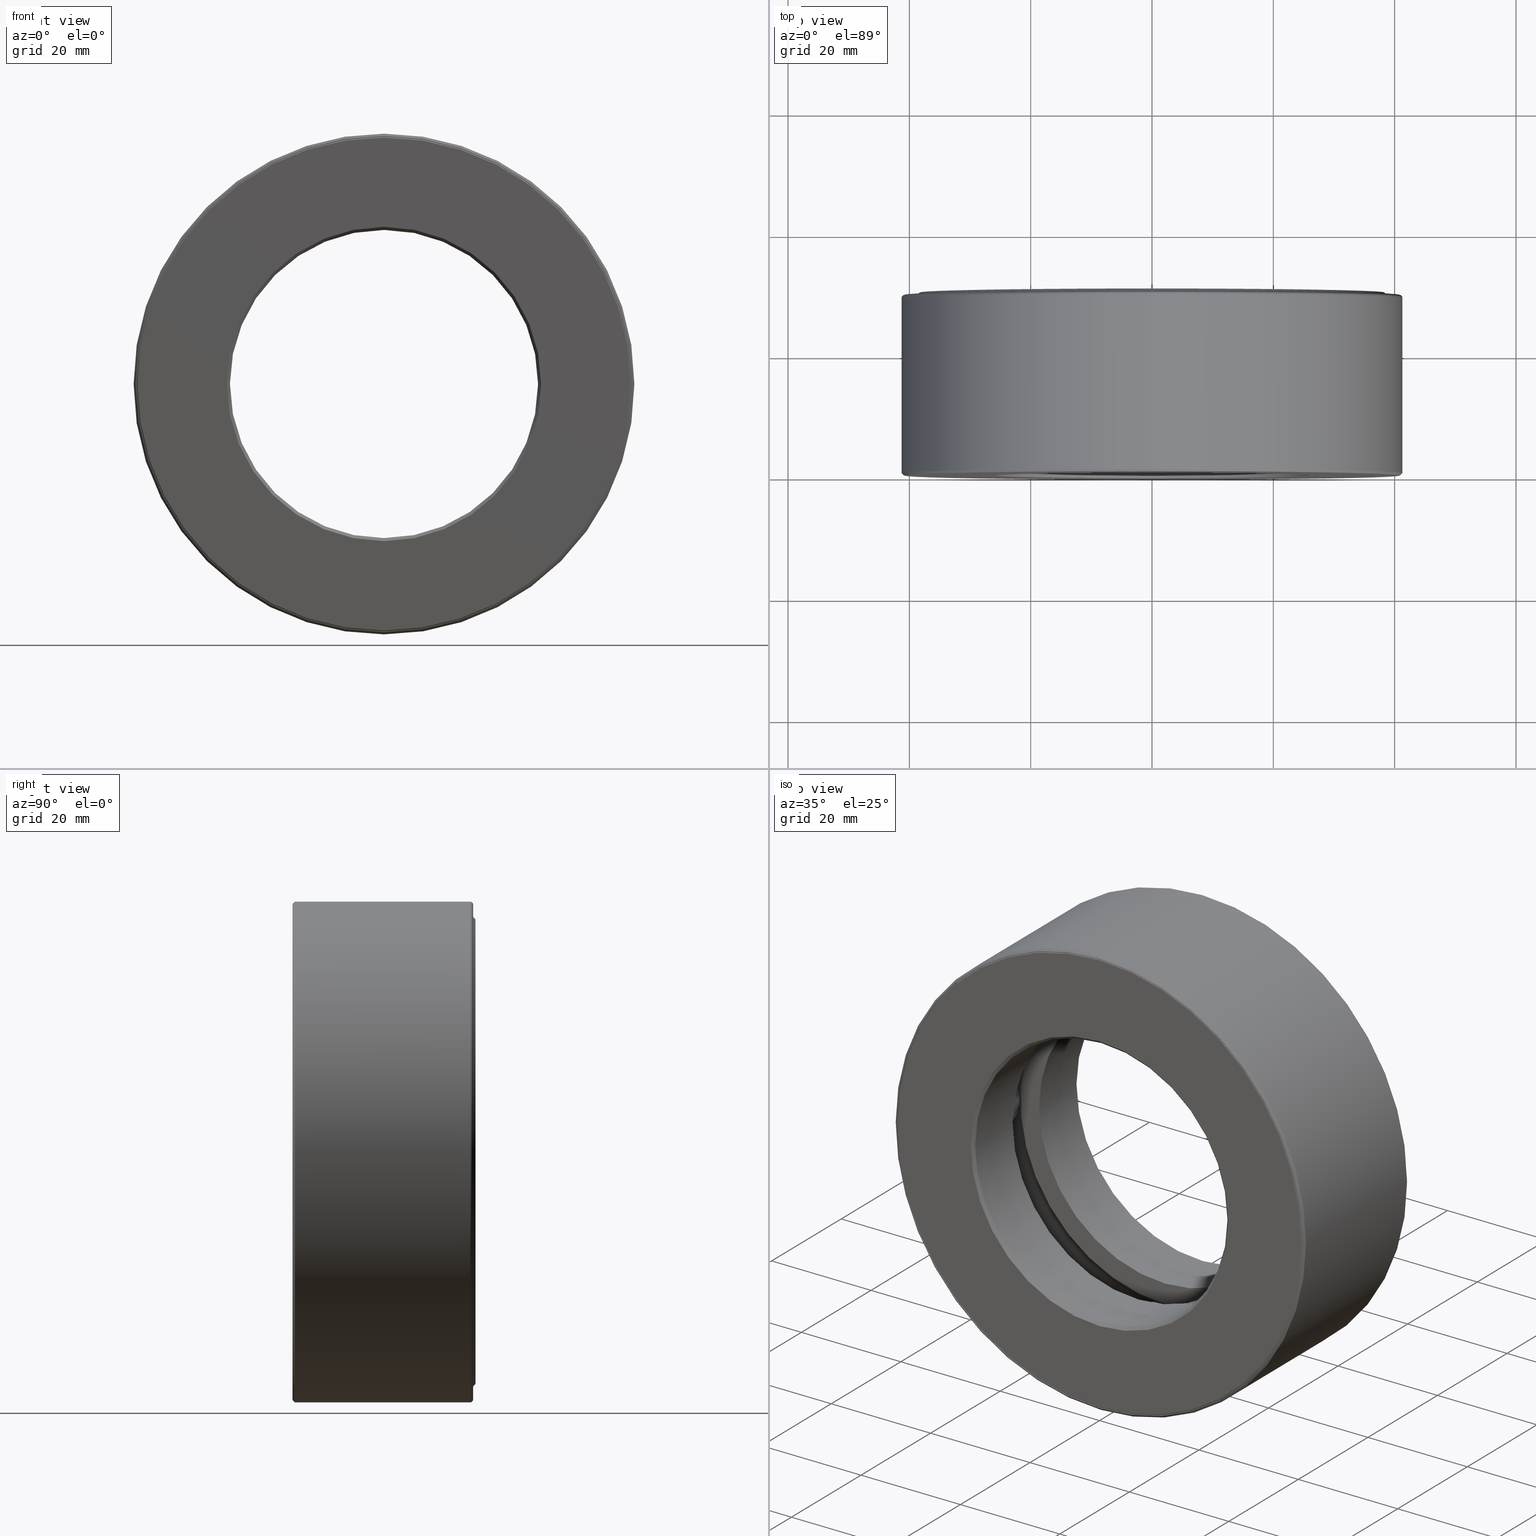
[diagram: canonical four-view strip — front | top / right | iso, engineering-drawing reading convention]
A machine part, canonical four-view strip (front | top / right | iso — engineering-drawing reading convention). The complete STEP part file that produces these views, byte-faithful:
ISO-10303-21;
HEADER;
FILE_DESCRIPTION (( 'STEP AP203' ),
    '1' );
FILE_NAME ('T-100-38.step',
    '2016-06-29T18:27:34',
    ( '' ),
    ( '' ),
    'SwSTEP 2.0',
    'SolidWorks 2016',
    '' );
FILE_SCHEMA (( 'CONFIG_CONTROL_DESIGN' ));
ENDSEC;

DATA;
#1 = CC_DESIGN_PERSON_AND_ORGANIZATION_ASSIGNMENT ( #105, #408, ( #541 ) ) ;
#2 = EDGE_LOOP ( 'NONE', ( #442 ) ) ;
#3 = AXIS2_PLACEMENT_3D ( 'NONE', #433, #383, #388 ) ;
#4 = PLANE ( 'NONE',  #193 ) ;
#5 = AXIS2_PLACEMENT_3D ( 'NONE', #344, #73, #529 ) ;
#6 = VERTEX_POINT ( 'NONE', #419 ) ;
#7 = EDGE_LOOP ( 'NONE', ( #156 ) ) ;
#8 = EDGE_CURVE ( 'NONE', #190, #190, #568, .T. ) ;
#9 = ORIENTED_EDGE ( 'NONE', *, *, #503, .F. ) ;
#10 = CARTESIAN_POINT ( 'NONE',  ( 0.0000000000000000000, 0.4437499999999997600, 0.0000000000000000000 ) ) ;
#11 = ADVANCED_FACE ( 'NONE', ( #262, #205 ), #411, .F. ) ;
#12 = DIRECTION ( 'NONE',  ( 0.0000000000000000000, 0.0000000000000000000, 1.000000000000000000 ) ) ;
#13 = DIRECTION ( 'NONE',  ( 0.0000000000000000000, -0.0000000000000000000, -1.000000000000000000 ) ) ;
#14 = EDGE_LOOP ( 'NONE', ( #555 ) ) ;
#15 = ADVANCED_FACE ( 'NONE', ( #525, #188 ), #4, .T. ) ;
#16 = CARTESIAN_POINT ( 'NONE',  ( 0.0000000000000000000, -8.694983911032602800E-017, 0.0000000000000000000 ) ) ;
#17 = DIRECTION ( 'NONE',  ( 0.0000000000000000000, -1.000000000000000000, 0.0000000000000000000 ) ) ;
#18 = CALENDAR_DATE ( 2016, 29, 6 ) ;
#19 = DIRECTION ( 'NONE',  ( 0.0000000000000000000, 0.0000000000000000000, 1.000000000000000000 ) ) ;
#20 = ORIENTED_EDGE ( 'NONE', *, *, #377, .F. ) ;
#21 = DIRECTION ( 'NONE',  ( -0.0000000000000000000, 1.000000000000000000, -0.0000000000000000000 ) ) ;
#22 = ORIENTED_EDGE ( 'NONE', *, *, #503, .T. ) ;
#23 = SECURITY_CLASSIFICATION ( '', '', #560 ) ;
#24 = DIRECTION ( 'NONE',  ( 0.0000000000000000000, 0.0000000000000000000, 1.000000000000000000 ) ) ;
#25 = LOCAL_TIME ( 14, 27, 34.00000000000000000, #351 ) ;
#26 = EDGE_CURVE ( 'NONE', #502, #502, #427, .T. ) ;
#27 = ORIENTED_EDGE ( 'NONE', *, *, #88, .F. ) ;
#28 = FACE_OUTER_BOUND ( 'NONE', #402, .T. ) ;
#29 = CARTESIAN_POINT ( 'NONE',  ( 0.0000000000000000000, 0.0000000000000000000, 0.0000000000000000000 ) ) ;
#30 = CC_DESIGN_SECURITY_CLASSIFICATION ( #23, ( #541 ) ) ;
#31 = CARTESIAN_POINT ( 'NONE',  ( 0.0000000000000000000, 1.167499999999999500, 0.0000000000000000000 ) ) ;
#32 = VERTEX_POINT ( 'NONE', #490 ) ;
#33 =( NAMED_UNIT ( * ) PLANE_ANGLE_UNIT ( ) SI_UNIT ( $, .RADIAN. ) );
#34 = EDGE_LOOP ( 'NONE', ( #27 ) ) ;
#35 = PERSON_AND_ORGANIZATION_ROLE ( 'creator' ) ;
#36 = ORIENTED_EDGE ( 'NONE', *, *, #547, .F. ) ;
#37 = AXIS2_PLACEMENT_3D ( 'NONE', #10, #324, #369 ) ;
#38 = CARTESIAN_POINT ( 'NONE',  ( 0.0000000000000000000, 1.172499999999999900, 1.545000000000000200 ) ) ;
#39 = APPLICATION_CONTEXT ( 'configuration controlled 3d designs of mechanical parts and assemblies' ) ;
#40 = VERTEX_POINT ( 'NONE', #599 ) ;
#41 = CONICAL_SURFACE ( 'NONE', #162, 1.509999999999999800, 0.7853981633974490600 ) ;
#42 = APPROVAL_STATUS ( 'not_yet_approved' ) ;
#43 = DATE_AND_TIME ( #270, #25 ) ;
#44 = VERTEX_POINT ( 'NONE', #544 ) ;
#45 = CARTESIAN_POINT ( 'NONE',  ( 1.391652017320402500E-015, 0.7437499999999999100, 0.0000000000000000000 ) ) ;
#46 = EDGE_LOOP ( 'NONE', ( #374 ) ) ;
#47 = CYLINDRICAL_SURFACE ( 'NONE', #559, 1.000000000000000000 ) ;
#48 = ADVANCED_BREP_SHAPE_REPRESENTATION ( 'T-100-38', ( #520, #428, #137, #455, #154, #473, #189 ), #219 ) ;
#49 = FACE_OUTER_BOUND ( 'NONE', #274, .T. ) ;
#50 = CIRCLE ( 'NONE', #58, 1.598000000000000100 ) ;
#51 = CIRCLE ( 'NONE', #450, 1.020000000000000200 ) ;
#52 = DIRECTION ( 'NONE',  ( -0.0000000000000000000, 1.000000000000000000, 0.0000000000000000000 ) ) ;
#53 = VERTEX_POINT ( 'NONE', #152 ) ;
#54 = PLANE ( 'NONE',  #231 ) ;
#55 = ORIENTED_EDGE ( 'NONE', *, *, #510, .F. ) ;
#56 = CARTESIAN_POINT ( 'NONE',  ( -1.409860164624857200E-014, 0.5937500000000000000, -1.346000000000000100 ) ) ;
#57 = CC_DESIGN_DATE_AND_TIME_ASSIGNMENT ( #215, #182, ( #23 ) ) ;
#58 = AXIS2_PLACEMENT_3D ( 'NONE', #583, #21, #157 ) ;
#59 = DIRECTION ( 'NONE',  ( -0.0000000000000000000, 1.000000000000000000, -0.0000000000000000000 ) ) ;
#60 = ADVANCED_FACE ( 'NONE', ( ), #550, .T. ) ;
#61 = CARTESIAN_POINT ( 'NONE',  ( 0.0000000000000000000, 0.7437499999999998000, 0.0000000000000000000 ) ) ;
#62 = EDGE_LOOP ( 'NONE', ( #108 ) ) ;
#63 = FACE_OUTER_BOUND ( 'NONE', #2, .T. ) ;
#64 = EDGE_LOOP ( 'NONE', ( #364 ) ) ;
#65 = DIRECTION ( 'NONE',  ( -0.0000000000000000000, 1.000000000000000000, 0.0000000000000000000 ) ) ;
#66 = CARTESIAN_POINT ( 'NONE',  ( 0.0000000000000000000, 0.0000000000000000000, 0.0000000000000000000 ) ) ;
#67 = CARTESIAN_POINT ( 'NONE',  ( 0.0000000000000000000, 0.7437500000000001300, 0.0000000000000000000 ) ) ;
#68 = DIRECTION ( 'NONE',  ( 0.0000000000000000000, -0.0000000000000000000, -1.000000000000000000 ) ) ;
#69 = AXIS2_PLACEMENT_3D ( 'NONE', #98, #192, #185 ) ;
#70 = DIRECTION ( 'NONE',  ( 0.0000000000000000000, -1.000000000000000000, 0.0000000000000000000 ) ) ;
#71 = DIRECTION ( 'NONE',  ( 0.0000000000000000000, 0.0000000000000000000, 1.000000000000000000 ) ) ;
#72 = FACE_OUTER_BOUND ( 'NONE', #327, .T. ) ;
#73 = DIRECTION ( 'NONE',  ( -0.0000000000000000000, 1.000000000000000000, -0.0000000000000000000 ) ) ;
#74 = DIRECTION ( 'NONE',  ( -0.0000000000000000000, 1.000000000000000000, -0.0000000000000000000 ) ) ;
#75 = ORIENTED_EDGE ( 'NONE', *, *, #476, .T. ) ;
#76 = CYLINDRICAL_SURFACE ( 'NONE', #3, 1.545000000000000200 ) ;
#77 = EDGE_LOOP ( 'NONE', ( #577 ) ) ;
#78 = DIRECTION ( 'NONE',  ( 0.0000000000000000000, 0.0000000000000000000, 1.000000000000000000 ) ) ;
#79 = CARTESIAN_POINT ( 'NONE',  ( 0.0000000000000000000, 0.0000000000000000000, 0.0000000000000000000 ) ) ;
#80 = AXIS2_PLACEMENT_3D ( 'NONE', #527, #59, #338 ) ;
#81 = VERTEX_POINT ( 'NONE', #399 ) ;
#82 = CIRCLE ( 'NONE', #161, 1.605000000000000000 ) ;
#83 = CARTESIAN_POINT ( 'NONE',  ( 0.0000000000000000000, 2.048885995248197400E-016, 1.020000000000000200 ) ) ;
#84 = EDGE_LOOP ( 'NONE', ( #169 ) ) ;
#85 = CARTESIAN_POINT ( 'NONE',  ( 0.0000000000000000000, 1.152499999999999900, 1.605000000000000000 ) ) ;
#86 = EDGE_LOOP ( 'NONE', ( #295 ) ) ;
#87 = AXIS2_PLACEMENT_3D ( 'NONE', #254, #167, #346 ) ;
#88 = EDGE_CURVE ( 'NONE', #6, #6, #141, .T. ) ;
#89 = FACE_OUTER_BOUND ( 'NONE', #515, .T. ) ;
#90 = PERSON_AND_ORGANIZATION ( #585, #168 ) ;
#91 = CC_DESIGN_PERSON_AND_ORGANIZATION_ASSIGNMENT ( #129, #35, ( #354 ) ) ;
#92 = APPROVAL_ROLE ( '' ) ;
#93 = AXIS2_PLACEMENT_3D ( 'NONE', #61, #380, #298 ) ;
#94 = ORIENTED_EDGE ( 'NONE', *, *, #462, .T. ) ;
#95 = DIRECTION ( 'NONE',  ( 0.0000000000000000000, -0.0000000000000000000, -1.000000000000000000 ) ) ;
#96 = ADVANCED_FACE ( 'NONE', ( #49, #247 ), #155, .T. ) ;
#97 = VERTEX_POINT ( 'NONE', #173 ) ;
#98 = CARTESIAN_POINT ( 'NONE',  ( 0.0000000000000000000, 0.02000000000000046900, 0.0000000000000000000 ) ) ;
#99 = EDGE_CURVE ( 'NONE', #360, #360, #310, .T. ) ;
#100 = ORIENTED_EDGE ( 'NONE', *, *, #304, .F. ) ;
#101 = ORIENTED_EDGE ( 'NONE', *, *, #413, .T. ) ;
#102 = ADVANCED_FACE ( 'NONE', ( #226, #320 ), #41, .T. ) ;
#103 = CC_DESIGN_PERSON_AND_ORGANIZATION_ASSIGNMENT ( #533, #551, ( #471 ) ) ;
#104 = DIRECTION ( 'NONE',  ( 0.0000000000000000000, 0.0000000000000000000, 1.000000000000000000 ) ) ;
#105 = PERSON_AND_ORGANIZATION ( #585, #168 ) ;
#106 = ADVANCED_FACE ( 'NONE', ( #358, #238 ), #76, .F. ) ;
#107 = DIRECTION ( 'NONE',  ( 1.000000000000000000, 0.0000000000000000000, 0.0000000000000000000 ) ) ;
#108 = ORIENTED_EDGE ( 'NONE', *, *, #581, .F. ) ;
#109 = ADVANCED_FACE ( 'NONE', ( #125, #187 ), #348, .F. ) ;
#110 = FACE_OUTER_BOUND ( 'NONE', #311, .T. ) ;
#111 = DIRECTION ( 'NONE',  ( -0.0000000000000000000, 1.000000000000000000, -0.0000000000000000000 ) ) ;
#112 = DIRECTION ( 'NONE',  ( -0.0000000000000000000, 1.000000000000000000, -0.0000000000000000000 ) ) ;
#113 = AXIS2_PLACEMENT_3D ( 'NONE', #66, #432, #523 ) ;
#114 = VERTEX_POINT ( 'NONE', #404 ) ;
#115 = DIRECTION ( 'NONE',  ( 0.0000000000000000000, 0.0000000000000000000, 1.000000000000000000 ) ) ;
#116 = DIRECTION ( 'NONE',  ( -0.0000000000000000000, 1.000000000000000000, -0.0000000000000000000 ) ) ;
#117 = EDGE_LOOP ( 'NONE', ( #55 ) ) ;
#118 = EDGE_LOOP ( 'NONE', ( #597 ) ) ;
#119 = FACE_OUTER_BOUND ( 'NONE', #567, .T. ) ;
#120 = AXIS2_PLACEMENT_3D ( 'NONE', #365, #326, #24 ) ;
#121 = DIRECTION ( 'NONE',  ( 0.0000000000000000000, 0.0000000000000000000, 1.000000000000000000 ) ) ;
#122 = DIRECTION ( 'NONE',  ( -0.0000000000000000000, 1.000000000000000000, 0.0000000000000000000 ) ) ;
#123 = DIRECTION ( 'NONE',  ( -0.0000000000000000000, 1.000000000000000000, -0.0000000000000000000 ) ) ;
#124 = DIRECTION ( 'NONE',  ( -0.0000000000000000000, 1.000000000000000000, -0.0000000000000000000 ) ) ;
#125 = FACE_OUTER_BOUND ( 'NONE', #209, .T. ) ;
#126 = CC_DESIGN_DATE_AND_TIME_ASSIGNMENT ( #43, #403, ( #354 ) ) ;
#127 = AXIS2_PLACEMENT_3D ( 'NONE', #590, #211, #425 ) ;
#128 = DIRECTION ( 'NONE',  ( -0.0000000000000000000, 1.000000000000000000, -0.0000000000000000000 ) ) ;
#129 = PERSON_AND_ORGANIZATION ( #585, #168 ) ;
#130 = AXIS2_PLACEMENT_3D ( 'NONE', #534, #251, #291 ) ;
#131 = ORIENTED_EDGE ( 'NONE', *, *, #410, .F. ) ;
#132 = CLOSED_SHELL ( 'NONE', ( #575, #422, #15, #201, #322, #96, #102, #147 ) ) ;
#133 = FACE_OUTER_BOUND ( 'NONE', #77, .T. ) ;
#134 = CARTESIAN_POINT ( 'NONE',  ( 0.0000000000000000000, -8.694983911032602800E-017, 1.605000000000000000 ) ) ;
#135 = CARTESIAN_POINT ( 'NONE',  ( 0.0000000000000000000, 0.7437500000000001300, 1.598000000000000100 ) ) ;
#136 = CIRCLE ( 'NONE', #253, 1.598000000000000100 ) ;
#137 = MANIFOLD_SOLID_BREP ( 'Revolve3', #480 ) ;
#138 = LOCAL_TIME ( 14, 27, 34.00000000000000000, #592 ) ;
#139 = LOCAL_TIME ( 14, 27, 34.00000000000000000, #260 ) ;
#140 = AXIS2_PLACEMENT_3D ( 'NONE', #458, #511, #470 ) ;
#141 = CIRCLE ( 'NONE', #181, 1.625000000000000000 ) ;
#142 = CIRCLE ( 'NONE', #373, 1.605000000000000000 ) ;
#143 = CARTESIAN_POINT ( 'NONE',  ( 0.0000000000000000000, 0.4437500000000001400, 0.0000000000000000000 ) ) ;
#144 = ORIENTED_EDGE ( 'NONE', *, *, #8, .F. ) ;
#145 = FACE_OUTER_BOUND ( 'NONE', #456, .T. ) ;
#146 = DIRECTION ( 'NONE',  ( 1.047444401652940000E-014, 0.0000000000000000000, 1.000000000000000000 ) ) ;
#147 = ADVANCED_FACE ( 'NONE', ( #110, #63 ), #516, .T. ) ;
#148 = PRODUCT_RELATED_PRODUCT_CATEGORY ( 'detail', '', ( #471 ) ) ;
#149 = CARTESIAN_POINT ( 'NONE',  ( 0.0000000000000000000, 0.4437499999999997600, 1.605000000000000000 ) ) ;
#150 = DIRECTION ( 'NONE',  ( 0.0000000000000000000, -1.000000000000000000, 0.0000000000000000000 ) ) ;
#151 = CIRCLE ( 'NONE', #174, 1.605000000000000000 ) ;
#152 = CARTESIAN_POINT ( 'NONE',  ( 0.0000000000000000000, 1.187500000000000000, 1.020000000000000200 ) ) ;
#153 = AXIS2_PLACEMENT_3D ( 'NONE', #342, #389, #121 ) ;
#154 = MANIFOLD_SOLID_BREP ( 'BALLS[2]', #292 ) ;
#155 = PLANE ( 'NONE',  #494 ) ;
#156 = ORIENTED_EDGE ( 'NONE', *, *, #213, .T. ) ;
#157 = DIRECTION ( 'NONE',  ( 0.0000000000000000000, 0.0000000000000000000, 1.000000000000000000 ) ) ;
#158 = EDGE_LOOP ( 'NONE', ( #309 ) ) ;
#159 = DIRECTION ( 'NONE',  ( 0.0000000000000000000, 0.0000000000000000000, 1.000000000000000000 ) ) ;
#160 = VERTEX_POINT ( 'NONE', #314 ) ;
#161 = AXIS2_PLACEMENT_3D ( 'NONE', #421, #512, #104 ) ;
#162 = AXIS2_PLACEMENT_3D ( 'NONE', #526, #70, #335 ) ;
#163 = DIRECTION ( 'NONE',  ( 0.0000000000000000000, 0.0000000000000000000, 1.000000000000000000 ) ) ;
#164 = FACE_OUTER_BOUND ( 'NONE', #210, .T. ) ;
#165 = DIRECTION ( 'NONE',  ( 0.0000000000000000000, 0.0000000000000000000, 1.000000000000000000 ) ) ;
#166 = FACE_BOUND ( 'NONE', #186, .T. ) ;
#167 = DIRECTION ( 'NONE',  ( 0.0000000000000000000, -1.000000000000000000, 0.0000000000000000000 ) ) ;
#168 = ORGANIZATION ( 'UNSPECIFIED', 'UNSPECIFIED', '' ) ;
#169 = ORIENTED_EDGE ( 'NONE', *, *, #547, .T. ) ;
#170 = CIRCLE ( 'NONE', #275, 1.000000000000000200 ) ;
#171 = CARTESIAN_POINT ( 'NONE',  ( 0.0000000000000000000, 0.4437499999999998700, 1.146000000000000400 ) ) ;
#172 = EDGE_LOOP ( 'NONE', ( #222 ) ) ;
#173 = CARTESIAN_POINT ( 'NONE',  ( 0.0000000000000000000, 1.152499999999999900, 1.545000000000000200 ) ) ;
#174 = AXIS2_PLACEMENT_3D ( 'NONE', #16, #290, #565 ) ;
#175 = DIRECTION ( 'NONE',  ( 1.000000000000000000, 0.0000000000000000000, 0.0000000000000000000 ) ) ;
#176 = VERTEX_POINT ( 'NONE', #135 ) ;
#177 = APPLICATION_PROTOCOL_DEFINITION ( 'international standard', 'config_control_design', 1994, #39 ) ;
#178 = EDGE_LOOP ( 'NONE', ( #75 ) ) ;
#179 = FACE_OUTER_BOUND ( 'NONE', #117, .T. ) ;
#180 = FACE_BOUND ( 'NONE', #524, .T. ) ;
#181 = AXIS2_PLACEMENT_3D ( 'NONE', #477, #112, #159 ) ;
#182 = DATE_TIME_ROLE ( 'classification_date' ) ;
#183 = FACE_OUTER_BOUND ( 'NONE', #7, .T. ) ;
#184 = APPROVAL_STATUS ( 'not_yet_approved' ) ;
#185 = DIRECTION ( 'NONE',  ( 0.0000000000000000000, 0.0000000000000000000, -1.000000000000000000 ) ) ;
#186 = EDGE_LOOP ( 'NONE', ( #9 ) ) ;
#187 = FACE_OUTER_BOUND ( 'NONE', #491, .T. ) ;
#188 = FACE_OUTER_BOUND ( 'NONE', #248, .T. ) ;
#189 = AXIS2_PLACEMENT_3D ( 'NONE', #79, #451, #175 ) ;
#190 = VERTEX_POINT ( 'NONE', #149 ) ;
#191 = VERTEX_POINT ( 'NONE', #606 ) ;
#192 = DIRECTION ( 'NONE',  ( 0.0000000000000000000, -1.000000000000000000, 0.0000000000000000000 ) ) ;
#193 = AXIS2_PLACEMENT_3D ( 'NONE', #45, #359, #95 ) ;
#194 = ADVANCED_FACE ( 'NONE', ( ), #363, .T. ) ;
#195 = ORIENTED_EDGE ( 'NONE', *, *, #235, .F. ) ;
#196 = FACE_BOUND ( 'NONE', #118, .T. ) ;
#197 = CC_DESIGN_PERSON_AND_ORGANIZATION_ASSIGNMENT ( #90, #454, ( #23 ) ) ;
#198 = AXIS2_PLACEMENT_3D ( 'NONE', #531, #587, #300 ) ;
#199 = DIRECTION ( 'NONE',  ( 0.0000000000000000000, 0.0000000000000000000, 1.000000000000000000 ) ) ;
#200 = CALENDAR_DATE ( 2016, 29, 6 ) ;
#201 = ADVANCED_FACE ( 'NONE', ( #204, #145 ), #268, .F. ) ;
#202 = CARTESIAN_POINT ( 'NONE',  ( 0.0000000000000000000, 0.005000000000000418200, 0.0000000000000000000 ) ) ;
#203 = ADVANCED_FACE ( 'NONE', ( #598, #28 ), #47, .F. ) ;
#204 = FACE_OUTER_BOUND ( 'NONE', #14, .T. ) ;
#205 = FACE_BOUND ( 'NONE', #484, .T. ) ;
#206 = DIRECTION ( 'NONE',  ( -0.0000000000000000000, 1.000000000000000000, -0.0000000000000000000 ) ) ;
#207 = CIRCLE ( 'NONE', #317, 1.610000000000000100 ) ;
#208 = DIRECTION ( 'NONE',  ( 0.0000000000000000000, 0.0000000000000000000, 1.000000000000000000 ) ) ;
#209 = EDGE_LOOP ( 'NONE', ( #319 ) ) ;
#210 = EDGE_LOOP ( 'NONE', ( #449 ) ) ;
#211 = DIRECTION ( 'NONE',  ( -1.000000000000000000, 0.0000000000000000000, 3.491481338843134500E-015 ) ) ;
#212 = CARTESIAN_POINT ( 'NONE',  ( 0.0000000000000000000, 2.048885995248197400E-016, 0.0000000000000000000 ) ) ;
#213 = EDGE_CURVE ( 'NONE', #53, #53, #406, .T. ) ;
#214 = DIRECTION ( 'NONE',  ( 0.0000000000000000000, 0.0000000000000000000, 1.000000000000000000 ) ) ;
#215 = DATE_AND_TIME ( #257, #397 ) ;
#216 = ORIENTED_EDGE ( 'NONE', *, *, #26, .T. ) ;
#217 = AXIS2_PLACEMENT_3D ( 'NONE', #340, #150, #68 ) ;
#218 = DIRECTION ( 'NONE',  ( 0.0000000000000000000, 0.0000000000000000000, 1.000000000000000000 ) ) ;
#219 =( GEOMETRIC_REPRESENTATION_CONTEXT ( 3 ) GLOBAL_UNCERTAINTY_ASSIGNED_CONTEXT ( ( #285 ) ) GLOBAL_UNIT_ASSIGNED_CONTEXT ( ( #259, #33, #495 ) ) REPRESENTATION_CONTEXT ( 'NONE', 'WORKASPACE' ) );
#220 = APPLICATION_PROTOCOL_DEFINITION ( 'international standard', 'config_control_design', 1994, #487 ) ;
#221 = VERTEX_POINT ( 'NONE', #83 ) ;
#222 = ORIENTED_EDGE ( 'NONE', *, *, #570, .T. ) ;
#223 = ORIENTED_EDGE ( 'NONE', *, *, #99, .F. ) ;
#224 = CIRCLE ( 'NONE', #398, 1.545000000000000200 ) ;
#225 = ORIENTED_EDGE ( 'NONE', *, *, #496, .T. ) ;
#226 = FACE_OUTER_BOUND ( 'NONE', #178, .T. ) ;
#227 = APPROVAL_DATE_TIME ( #409, #386 ) ;
#228 = VERTEX_POINT ( 'NONE', #265 ) ;
#229 = CLOSED_SHELL ( 'NONE', ( #109, #278, #272, #289, #106, #469, #371, #424, #239, #367, #504, #332, #282, #11, #203, #465 ) ) ;
#230 = EDGE_LOOP ( 'NONE', ( #144 ) ) ;
#231 = AXIS2_PLACEMENT_3D ( 'NONE', #331, #17, #13 ) ;
#232 = CARTESIAN_POINT ( 'NONE',  ( 0.0000000000000000000, -8.643737792453333200E-017, 1.599999999999999600 ) ) ;
#233 = FACE_OUTER_BOUND ( 'NONE', #603, .T. ) ;
#234 = DIRECTION ( 'NONE',  ( 1.000000000000000000, 0.0000000000000000000, -1.047444401652940000E-014 ) ) ;
#235 = EDGE_CURVE ( 'NONE', #297, #297, #170, .T. ) ;
#236 = DIRECTION ( 'NONE',  ( -0.0000000000000000000, 1.000000000000000000, -0.0000000000000000000 ) ) ;
#237 = ORIENTED_EDGE ( 'NONE', *, *, #213, .F. ) ;
#238 = FACE_OUTER_BOUND ( 'NONE', #267, .T. ) ;
#239 = ADVANCED_FACE ( 'NONE', ( #549, #293 ), #316, .T. ) ;
#240 = PLANE ( 'NONE',  #217 ) ;
#241 = CALENDAR_DATE ( 2016, 29, 6 ) ;
#242 = APPROVAL_DATE_TIME ( #489, #244 ) ;
#243 = DIRECTION ( 'NONE',  ( -0.0000000000000000000, 1.000000000000000000, -0.0000000000000000000 ) ) ;
#244 = APPROVAL ( #602, 'UNSPECIFIED' ) ;
#245 = CARTESIAN_POINT ( 'NONE',  ( 0.0000000000000000000, 0.5937500000000000000, 0.0000000000000000000 ) ) ;
#246 = CARTESIAN_POINT ( 'NONE',  ( 0.0000000000000000000, 0.7437500000000001300, 0.0000000000000000000 ) ) ;
#247 = FACE_BOUND ( 'NONE', #562, .T. ) ;
#248 = EDGE_LOOP ( 'NONE', ( #589 ) ) ;
#249 = DIRECTION ( 'NONE',  ( -1.000000000000000000, 0.0000000000000000000, 6.982962677686269100E-015 ) ) ;
#250 = FACE_BOUND ( 'NONE', #86, .T. ) ;
#251 = DIRECTION ( 'NONE',  ( -0.0000000000000000000, 1.000000000000000000, -0.0000000000000000000 ) ) ;
#252 = APPROVAL_PERSON_ORGANIZATION ( #519, #386, #92 ) ;
#253 = AXIS2_PLACEMENT_3D ( 'NONE', #294, #111, #479 ) ;
#254 = CARTESIAN_POINT ( 'NONE',  ( 0.0000000000000000000, 0.4437499999999997600, 0.0000000000000000000 ) ) ;
#255 = ORIENTED_EDGE ( 'NONE', *, *, #570, .F. ) ;
#256 = CARTESIAN_POINT ( 'NONE',  ( 0.0000000000000000000, 0.02000000000000046900, 0.0000000000000000000 ) ) ;
#257 = CALENDAR_DATE ( 2016, 29, 6 ) ;
#258 = CARTESIAN_POINT ( 'NONE',  ( 0.0000000000000000000, -8.750450604705842700E-017, 0.0000000000000000000 ) ) ;
#259 =( CONVERSION_BASED_UNIT ( 'INCH', #387 ) LENGTH_UNIT ( ) NAMED_UNIT ( #463 ) );
#260 = COORDINATED_UNIVERSAL_TIME_OFFSET ( 5, 0, .BEHIND. ) ;
#261 = FACE_OUTER_BOUND ( 'NONE', #230, .T. ) ;
#262 = FACE_OUTER_BOUND ( 'NONE', #426, .T. ) ;
#263 = CARTESIAN_POINT ( 'NONE',  ( 0.0000000000000000000, 0.02000000000000046900, 1.000000000000000000 ) ) ;
#264 = PRODUCT_DEFINITION_SHAPE ( 'NONE', 'NONE',  #354 ) ;
#265 = CARTESIAN_POINT ( 'NONE',  ( 0.0000000000000000000, -8.750450604705842700E-017, 1.610000000000000100 ) ) ;
#266 = EDGE_CURVE ( 'NONE', #299, #299, #392, .T. ) ;
#267 = EDGE_LOOP ( 'NONE', ( #22 ) ) ;
#268 = CYLINDRICAL_SURFACE ( 'NONE', #337, 1.000000000000000200 ) ;
#269 = CIRCLE ( 'NONE', #356, 1.624999999999999800 ) ;
#270 = CALENDAR_DATE ( 2016, 29, 6 ) ;
#271 = APPROVAL_PERSON_ORGANIZATION ( #400, #244, #312 ) ;
#272 = ADVANCED_FACE ( 'NONE', ( #261, #492 ), #538, .F. ) ;
#273 = ORIENTED_EDGE ( 'NONE', *, *, #446, .T. ) ;
#274 = EDGE_LOOP ( 'NONE', ( #391 ) ) ;
#275 = AXIS2_PLACEMENT_3D ( 'NONE', #31, #540, #545 ) ;
#276 = CARTESIAN_POINT ( 'NONE',  ( 0.0000000000000000000, 0.7437499999999998000, 1.000000000000000200 ) ) ;
#277 = FACE_BOUND ( 'NONE', #84, .T. ) ;
#278 = ADVANCED_FACE ( 'NONE', ( #196, #72 ), #593, .F. ) ;
#279 = FACE_BOUND ( 'NONE', #158, .T. ) ;
#280 = AXIS2_PLACEMENT_3D ( 'NONE', #343, #438, #249 ) ;
#281 = VERTEX_POINT ( 'NONE', #554 ) ;
#282 = ADVANCED_FACE ( 'NONE', ( #506, #277 ), #600, .F. ) ;
#283 = DIRECTION ( 'NONE',  ( -0.0000000000000000000, 1.000000000000000000, -0.0000000000000000000 ) ) ;
#284 = AXIS2_PLACEMENT_3D ( 'NONE', #474, #206, #584 ) ;
#285 = UNCERTAINTY_MEASURE_WITH_UNIT (LENGTH_MEASURE( 1.000000000000000100E-005 ), #259, 'distance_accuracy_value', 'NONE');
#286 = DIRECTION ( 'NONE',  ( -0.0000000000000000000, 1.000000000000000000, -0.0000000000000000000 ) ) ;
#287 = PERSON_AND_ORGANIZATION ( #585, #168 ) ;
#288 = AXIS2_PLACEMENT_3D ( 'NONE', #440, #349, #214 ) ;
#289 = ADVANCED_FACE ( 'NONE', ( #528, #500 ), #596, .F. ) ;
#290 = DIRECTION ( 'NONE',  ( -0.0000000000000000000, 1.000000000000000000, -0.0000000000000000000 ) ) ;
#291 = DIRECTION ( 'NONE',  ( 0.0000000000000000000, 0.0000000000000000000, 1.000000000000000000 ) ) ;
#292 = CLOSED_SHELL ( 'NONE', ( #60 ) ) ;
#293 = FACE_BOUND ( 'NONE', #341, .T. ) ;
#294 = CARTESIAN_POINT ( 'NONE',  ( 0.0000000000000000000, 1.099499999999999900, 0.0000000000000000000 ) ) ;
#295 = ORIENTED_EDGE ( 'NONE', *, *, #581, .T. ) ;
#296 = CARTESIAN_POINT ( 'NONE',  ( 0.0000000000000000000, 0.0000000000000000000, 0.0000000000000000000 ) ) ;
#297 = VERTEX_POINT ( 'NONE', #546 ) ;
#298 = DIRECTION ( 'NONE',  ( 0.0000000000000000000, 0.0000000000000000000, 1.000000000000000000 ) ) ;
#299 = VERTEX_POINT ( 'NONE', #263 ) ;
#300 = DIRECTION ( 'NONE',  ( 0.0000000000000000000, 0.0000000000000000000, 1.000000000000000000 ) ) ;
#301 = EDGE_LOOP ( 'NONE', ( #339 ) ) ;
#302 = DIRECTION ( 'NONE',  ( 0.0000000000000000000, 0.0000000000000000000, 1.000000000000000000 ) ) ;
#303 = FACE_OUTER_BOUND ( 'NONE', #321, .T. ) ;
#304 = EDGE_CURVE ( 'NONE', #160, #160, #571, .T. ) ;
#305 = DIRECTION ( 'NONE',  ( 0.0000000000000000000, 0.0000000000000000000, 1.000000000000000000 ) ) ;
#306 = LOCAL_TIME ( 14, 27, 34.00000000000000000, #464 ) ;
#307 = DIRECTION ( 'NONE',  ( 0.0000000000000000000, 0.0000000000000000000, 1.000000000000000000 ) ) ;
#308 = CARTESIAN_POINT ( 'NONE',  ( -2.265412814660520800E-032, 5.922561080014321100E-017, 0.0000000000000000000 ) ) ;
#309 = ORIENTED_EDGE ( 'NONE', *, *, #510, .T. ) ;
#310 = CIRCLE ( 'NONE', #93, 1.000000000000000200 ) ;
#311 = EDGE_LOOP ( 'NONE', ( #94 ) ) ;
#312 = APPROVAL_ROLE ( '' ) ;
#313 = CYLINDRICAL_SURFACE ( 'NONE', #345, 1.605000000000000000 ) ;
#314 = CARTESIAN_POINT ( 'NONE',  ( 0.0000000000000000000, 1.187500000000000000, 1.509999999999999800 ) ) ;
#315 = CIRCLE ( 'NONE', #407, 1.545999999999999800 ) ;
#316 = CONICAL_SURFACE ( 'NONE', #390, 1.610000000000000100, 0.7853981633974362900 ) ;
#317 = AXIS2_PLACEMENT_3D ( 'NONE', #258, #595, #78 ) ;
#318 = COORDINATED_UNIVERSAL_TIME_OFFSET ( 5, 0, .BEHIND. ) ;
#319 = ORIENTED_EDGE ( 'NONE', *, *, #496, .F. ) ;
#320 = FACE_BOUND ( 'NONE', #448, .T. ) ;
#321 = EDGE_LOOP ( 'NONE', ( #468 ) ) ;
#322 = ADVANCED_FACE ( 'NONE', ( #183, #558 ), #517, .F. ) ;
#323 = CARTESIAN_POINT ( 'NONE',  ( -1.010132666352421300E-032, -8.722717257869222100E-017, 0.0000000000000000000 ) ) ;
#324 = DIRECTION ( 'NONE',  ( -0.0000000000000000000, 1.000000000000000000, -0.0000000000000000000 ) ) ;
#325 = CC_DESIGN_APPROVAL ( #418, ( #23 ) ) ;
#326 = DIRECTION ( 'NONE',  ( -0.0000000000000000000, 1.000000000000000000, -0.0000000000000000000 ) ) ;
#327 = EDGE_LOOP ( 'NONE', ( #437 ) ) ;
#328 = ORIENTED_EDGE ( 'NONE', *, *, #535, .T. ) ;
#329 = DIRECTION ( 'NONE',  ( 0.0000000000000000000, 0.0000000000000000000, 1.000000000000000000 ) ) ;
#330 = AXIS2_PLACEMENT_3D ( 'NONE', #573, #236, #417 ) ;
#331 = CARTESIAN_POINT ( 'NONE',  ( 0.0000000000000000000, 0.7437500000000001300, 0.0000000000000000000 ) ) ;
#332 = ADVANCED_FACE ( 'NONE', ( #539, #180 ), #569, .T. ) ;
#333 = DIRECTION ( 'NONE',  ( -0.0000000000000000000, 1.000000000000000000, -0.0000000000000000000 ) ) ;
#334 = DIRECTION ( 'NONE',  ( 0.0000000000000000000, 0.0000000000000000000, 1.000000000000000000 ) ) ;
#335 = DIRECTION ( 'NONE',  ( 0.0000000000000000000, 0.0000000000000000000, -1.000000000000000000 ) ) ;
#336 = CARTESIAN_POINT ( 'NONE',  ( 0.0000000000000000000, 1.172499999999999900, 0.0000000000000000000 ) ) ;
#337 = AXIS2_PLACEMENT_3D ( 'NONE', #536, #472, #302 ) ;
#338 = DIRECTION ( 'NONE',  ( 0.0000000000000000000, 0.0000000000000000000, 1.000000000000000000 ) ) ;
#339 = ORIENTED_EDGE ( 'NONE', *, *, #413, .F. ) ;
#340 = CARTESIAN_POINT ( 'NONE',  ( -8.303133884852882200E-016, 0.4437500000000000300, 0.0000000000000000000 ) ) ;
#341 = EDGE_LOOP ( 'NONE', ( #328 ) ) ;
#342 = CARTESIAN_POINT ( 'NONE',  ( 0.0000000000000000000, -8.643737792453333200E-017, 0.0000000000000000000 ) ) ;
#343 = CARTESIAN_POINT ( 'NONE',  ( 1.346000000000000100, 0.5937500000000000000, -9.399067764165714400E-015 ) ) ;
#344 = CARTESIAN_POINT ( 'NONE',  ( 0.0000000000000000000, 1.187500000000000000, 0.0000000000000000000 ) ) ;
#345 = AXIS2_PLACEMENT_3D ( 'NONE', #296, #116, #423 ) ;
#346 = DIRECTION ( 'NONE',  ( 0.0000000000000000000, -0.0000000000000000000, -1.000000000000000000 ) ) ;
#347 = ORIENTED_EDGE ( 'NONE', *, *, #443, .F. ) ;
#348 = TOROIDAL_SURFACE ( 'NONE', #542, 1.346000000000000100, 0.2499999999999999700 ) ;
#349 = DIRECTION ( 'NONE',  ( -0.0000000000000000000, 1.000000000000000000, -0.0000000000000000000 ) ) ;
#350 = MECHANICAL_CONTEXT ( 'NONE', #39, 'mechanical' ) ;
#351 = COORDINATED_UNIVERSAL_TIME_OFFSET ( 5, 0, .BEHIND. ) ;
#352 = CLOSED_SHELL ( 'NONE', ( #194 ) ) ;
#353 = EDGE_LOOP ( 'NONE', ( #255 ) ) ;
#354 = PRODUCT_DEFINITION ( 'UNKNOWN', '', #541, #557 ) ;
#355 = AXIS2_PLACEMENT_3D ( 'NONE', #202, #243, #334 ) ;
#356 = AXIS2_PLACEMENT_3D ( 'NONE', #518, #375, #507 ) ;
#357 = EDGE_LOOP ( 'NONE', ( #347 ) ) ;
#358 = FACE_OUTER_BOUND ( 'NONE', #301, .T. ) ;
#359 = DIRECTION ( 'NONE',  ( 0.0000000000000000000, -1.000000000000000000, 0.0000000000000000000 ) ) ;
#360 = VERTEX_POINT ( 'NONE', #276 ) ;
#361 = APPROVAL_ROLE ( '' ) ;
#362 = ORIENTED_EDGE ( 'NONE', *, *, #410, .T. ) ;
#363 = SPHERICAL_SURFACE ( 'NONE', #127, 0.2500000000000000600 ) ;
#364 = ORIENTED_EDGE ( 'NONE', *, *, #266, .F. ) ;
#365 = CARTESIAN_POINT ( 'NONE',  ( 0.0000000000000000000, -8.643737792453333200E-017, 0.0000000000000000000 ) ) ;
#366 = FACE_OUTER_BOUND ( 'NONE', #34, .T. ) ;
#367 = ADVANCED_FACE ( 'NONE', ( #303, #250 ), #372, .F. ) ;
#368 = APPROVAL_PERSON_ORGANIZATION ( #497, #418, #361 ) ;
#369 = DIRECTION ( 'NONE',  ( 0.0000000000000000000, 0.0000000000000000000, 1.000000000000000000 ) ) ;
#370 = DIRECTION ( 'NONE',  ( 0.0000000000000000000, 0.0000000000000000000, -1.000000000000000000 ) ) ;
#371 = ADVANCED_FACE ( 'NONE', ( #164, #119 ), #509, .T. ) ;
#372 = PLANE ( 'NONE',  #561 ) ;
#373 = AXIS2_PLACEMENT_3D ( 'NONE', #467, #283, #12 ) ;
#374 = ORIENTED_EDGE ( 'NONE', *, *, #26, .F. ) ;
#375 = DIRECTION ( 'NONE',  ( -0.0000000000000000000, 1.000000000000000000, -0.0000000000000000000 ) ) ;
#376 = DIRECTION ( 'NONE',  ( 0.0000000000000000000, 0.0000000000000000000, 1.000000000000000000 ) ) ;
#377 = EDGE_CURVE ( 'NONE', #114, #114, #269, .T. ) ;
#378 = VERTEX_POINT ( 'NONE', #444 ) ;
#379 = DIRECTION ( 'NONE',  ( 0.0000000000000000000, -0.0000000000000000000, -1.000000000000000000 ) ) ;
#380 = DIRECTION ( 'NONE',  ( -0.0000000000000000000, 1.000000000000000000, -0.0000000000000000000 ) ) ;
#381 = EDGE_LOOP ( 'NONE', ( #20 ) ) ;
#382 = PLANE ( 'NONE',  #414 ) ;
#383 = DIRECTION ( 'NONE',  ( -0.0000000000000000000, 1.000000000000000000, -0.0000000000000000000 ) ) ;
#384 = CIRCLE ( 'NONE', #198, 1.545999999999999800 ) ;
#385 = CARTESIAN_POINT ( 'NONE',  ( 0.0000000000000000000, 1.172499999999999900, 0.0000000000000000000 ) ) ;
#386 = APPROVAL ( #184, 'UNSPECIFIED' ) ;
#387 = LENGTH_MEASURE_WITH_UNIT ( LENGTH_MEASURE( 0.02539999999999999900 ), #447 );
#388 = DIRECTION ( 'NONE',  ( 0.0000000000000000000, 0.0000000000000000000, 1.000000000000000000 ) ) ;
#389 = DIRECTION ( 'NONE',  ( -0.0000000000000000000, 1.000000000000000000, -0.0000000000000000000 ) ) ;
#390 = AXIS2_PLACEMENT_3D ( 'NONE', #485, #441, #218 ) ;
#391 = ORIENTED_EDGE ( 'NONE', *, *, #304, .T. ) ;
#392 = CIRCLE ( 'NONE', #429, 1.000000000000000000 ) ;
#393 = CIRCLE ( 'NONE', #80, 1.545000000000000200 ) ;
#394 = DIRECTION ( 'NONE',  ( -0.0000000000000000000, 1.000000000000000000, 0.0000000000000000000 ) ) ;
#395 = CIRCLE ( 'NONE', #355, 1.605000000000000000 ) ;
#396 = DIRECTION ( 'NONE',  ( -0.0000000000000000000, 1.000000000000000000, -0.0000000000000000000 ) ) ;
#397 = LOCAL_TIME ( 14, 27, 34.00000000000000000, #318 ) ;
#398 = AXIS2_PLACEMENT_3D ( 'NONE', #336, #286, #115 ) ;
#399 = CARTESIAN_POINT ( 'NONE',  ( 0.0000000000000000000, 1.099499999999999900, 1.598000000000000100 ) ) ;
#400 = PERSON_AND_ORGANIZATION ( #585, #168 ) ;
#401 = EDGE_LOOP ( 'NONE', ( #101 ) ) ;
#402 = EDGE_LOOP ( 'NONE', ( #362 ) ) ;
#403 = DATE_TIME_ROLE ( 'creation_date' ) ;
#404 = CARTESIAN_POINT ( 'NONE',  ( 0.0000000000000000000, 0.01499999999999997700, 1.624999999999999800 ) ) ;
#405 = SPHERICAL_SURFACE ( 'NONE', #513, 0.2500000000000000600 ) ;
#406 = CIRCLE ( 'NONE', #576, 1.020000000000000200 ) ;
#407 = AXIS2_PLACEMENT_3D ( 'NONE', #246, #333, #376 ) ;
#408 = PERSON_AND_ORGANIZATION_ROLE ( 'creator' ) ;
#409 = DATE_AND_TIME ( #200, #306 ) ;
#410 = EDGE_CURVE ( 'NONE', #44, #44, #605, .T. ) ;
#411 = CONICAL_SURFACE ( 'NONE', #69, 1.000000000000000000, 0.7853981633974500600 ) ;
#412 = PERSON_AND_ORGANIZATION_ROLE ( 'design_supplier' ) ;
#413 = EDGE_CURVE ( 'NONE', #97, #97, #393, .T. ) ;
#414 = AXIS2_PLACEMENT_3D ( 'NONE', #385, #578, #379 ) ;
#415 = DIRECTION ( 'NONE',  ( -0.0000000000000000000, 1.000000000000000000, -0.0000000000000000000 ) ) ;
#416 = FACE_OUTER_BOUND ( 'NONE', #498, .T. ) ;
#417 = DIRECTION ( 'NONE',  ( 0.0000000000000000000, 0.0000000000000000000, 1.000000000000000000 ) ) ;
#418 = APPROVAL ( #42, 'UNSPECIFIED' ) ;
#419 = CARTESIAN_POINT ( 'NONE',  ( 0.0000000000000000000, 1.152499999999999900, 1.625000000000000000 ) ) ;
#420 = EDGE_LOOP ( 'NONE', ( #195 ) ) ;
#421 = CARTESIAN_POINT ( 'NONE',  ( 0.0000000000000000000, 1.172499999999999900, 0.0000000000000000000 ) ) ;
#422 = ADVANCED_FACE ( 'NONE', ( #579, #179 ), #461, .F. ) ;
#423 = DIRECTION ( 'NONE',  ( 0.0000000000000000000, 0.0000000000000000000, 1.000000000000000000 ) ) ;
#424 = ADVANCED_FACE ( 'NONE', ( #366, #133 ), #591, .T. ) ;
#425 = DIRECTION ( 'NONE',  ( -3.491481338843134500E-015, 0.0000000000000000000, -1.000000000000000000 ) ) ;
#426 = EDGE_LOOP ( 'NONE', ( #36 ) ) ;
#427 = CIRCLE ( 'NONE', #120, 1.599999999999999600 ) ;
#428 = MANIFOLD_SOLID_BREP ( 'Revolve2[2]', #132 ) ;
#429 = AXIS2_PLACEMENT_3D ( 'NONE', #256, #124, #305 ) ;
#430 = FACE_OUTER_BOUND ( 'NONE', #493, .T. ) ;
#431 = VERTEX_POINT ( 'NONE', #171 ) ;
#432 = DIRECTION ( 'NONE',  ( -0.0000000000000000000, 1.000000000000000000, -0.0000000000000000000 ) ) ;
#433 = CARTESIAN_POINT ( 'NONE',  ( 0.0000000000000000000, 0.0000000000000000000, 0.0000000000000000000 ) ) ;
#434 = CARTESIAN_POINT ( 'NONE',  ( -1.346000000000000100, 0.5937500000000000000, 0.0000000000000000000 ) ) ;
#435 = ORIENTED_EDGE ( 'NONE', *, *, #552, .T. ) ;
#436 = EDGE_LOOP ( 'NONE', ( #131 ) ) ;
#437 = ORIENTED_EDGE ( 'NONE', *, *, #8, .T. ) ;
#438 = DIRECTION ( 'NONE',  ( 6.982962677686269100E-015, -0.0000000000000000000, 1.000000000000000000 ) ) ;
#439 = AXIS2_PLACEMENT_3D ( 'NONE', #67, #128, #165 ) ;
#440 = CARTESIAN_POINT ( 'NONE',  ( 0.0000000000000000000, 1.167499999999999500, 0.0000000000000000000 ) ) ;
#441 = DIRECTION ( 'NONE',  ( -0.0000000000000000000, 1.000000000000000000, -0.0000000000000000000 ) ) ;
#442 = ORIENTED_EDGE ( 'NONE', *, *, #476, .F. ) ;
#443 = EDGE_CURVE ( 'NONE', #378, #378, #395, .T. ) ;
#444 = CARTESIAN_POINT ( 'NONE',  ( 0.0000000000000000000, 0.005000000000000418200, 1.605000000000000000 ) ) ;
#445 = FACE_OUTER_BOUND ( 'NONE', #62, .T. ) ;
#446 = EDGE_CURVE ( 'NONE', #40, #40, #384, .T. ) ;
#447 =( LENGTH_UNIT ( ) NAMED_UNIT ( * ) SI_UNIT ( $, .METRE. ) );
#448 = EDGE_LOOP ( 'NONE', ( #100 ) ) ;
#449 = ORIENTED_EDGE ( 'NONE', *, *, #552, .F. ) ;
#450 = AXIS2_PLACEMENT_3D ( 'NONE', #212, #123, #514 ) ;
#451 = DIRECTION ( 'NONE',  ( 0.0000000000000000000, 0.0000000000000000000, 1.000000000000000000 ) ) ;
#452 = APPROVAL_DATE_TIME ( #488, #418 ) ;
#453 = AXIS2_PLACEMENT_3D ( 'NONE', #308, #394, #483 ) ;
#454 = PERSON_AND_ORGANIZATION_ROLE ( 'classification_officer' ) ;
#455 = MANIFOLD_SOLID_BREP ( 'BALLS[1]', #352 ) ;
#456 = EDGE_LOOP ( 'NONE', ( #223 ) ) ;
#457 = CC_DESIGN_PERSON_AND_ORGANIZATION_ASSIGNMENT ( #287, #412, ( #541 ) ) ;
#458 = CARTESIAN_POINT ( 'NONE',  ( 0.0000000000000000000, 0.5937500000000000000, 0.0000000000000000000 ) ) ;
#459 = ORIENTED_EDGE ( 'NONE', *, *, #99, .T. ) ;
#460 = ORIENTED_EDGE ( 'NONE', *, *, #443, .T. ) ;
#461 = TOROIDAL_SURFACE ( 'NONE', #140, 1.346000000000000100, 0.2499999999999998300 ) ;
#462 = EDGE_CURVE ( 'NONE', #176, #176, #50, .T. ) ;
#463 = DIMENSIONAL_EXPONENTS ( 1.000000000000000000, 0.0000000000000000000, 0.0000000000000000000, 0.0000000000000000000, 0.0000000000000000000, 0.0000000000000000000, 0.0000000000000000000 ) ;
#464 = COORDINATED_UNIVERSAL_TIME_OFFSET ( 5, 0, .BEHIND. ) ;
#465 = ADVANCED_FACE ( 'NONE', ( #601, #89 ), #240, .F. ) ;
#466 = AXIS2_PLACEMENT_3D ( 'NONE', #56, #234, #146 ) ;
#467 = CARTESIAN_POINT ( 'NONE',  ( 0.0000000000000000000, 1.152499999999999900, 0.0000000000000000000 ) ) ;
#468 = ORIENTED_EDGE ( 'NONE', *, *, #535, .F. ) ;
#469 = ADVANCED_FACE ( 'NONE', ( #166, #233 ), #382, .F. ) ;
#470 = DIRECTION ( 'NONE',  ( 0.0000000000000000000, 0.0000000000000000000, 1.000000000000000000 ) ) ;
#471 = PRODUCT ( 'T-100-38', 'T-100-38', '', ( #350 ) ) ;
#472 = DIRECTION ( 'NONE',  ( -0.0000000000000000000, 1.000000000000000000, -0.0000000000000000000 ) ) ;
#473 = MANIFOLD_SOLID_BREP ( 'BALLS[3]', #505 ) ;
#474 = CARTESIAN_POINT ( 'NONE',  ( 0.0000000000000000000, 0.4437499999999998700, 0.0000000000000000000 ) ) ;
#475 = SPHERICAL_SURFACE ( 'NONE', #466, 0.2500000000000000600 ) ;
#476 = EDGE_CURVE ( 'NONE', #81, #81, #136, .T. ) ;
#477 = CARTESIAN_POINT ( 'NONE',  ( 0.0000000000000000000, 1.152499999999999900, 0.0000000000000000000 ) ) ;
#478 = EDGE_LOOP ( 'NONE', ( #548 ) ) ;
#479 = DIRECTION ( 'NONE',  ( 0.0000000000000000000, 0.0000000000000000000, 1.000000000000000000 ) ) ;
#480 = CLOSED_SHELL ( 'NONE', ( #572 ) ) ;
#481 = CARTESIAN_POINT ( 'NONE',  ( 0.0000000000000000000, 1.187500000000000000, 0.0000000000000000000 ) ) ;
#482 = DIRECTION ( 'NONE',  ( -0.0000000000000000000, 1.000000000000000000, -0.0000000000000000000 ) ) ;
#483 = DIRECTION ( 'NONE',  ( 0.0000000000000000000, 0.0000000000000000000, 1.000000000000000000 ) ) ;
#484 = EDGE_LOOP ( 'NONE', ( #604 ) ) ;
#485 = CARTESIAN_POINT ( 'NONE',  ( 0.0000000000000000000, -8.750450604705842700E-017, 0.0000000000000000000 ) ) ;
#486 = DIRECTION ( 'NONE',  ( 0.0000000000000000000, 0.0000000000000000000, 1.000000000000000000 ) ) ;
#487 = APPLICATION_CONTEXT ( 'configuration controlled 3d designs of mechanical parts and assemblies' ) ;
#488 = DATE_AND_TIME ( #241, #138 ) ;
#489 = DATE_AND_TIME ( #18, #139 ) ;
#490 = CARTESIAN_POINT ( 'NONE',  ( 0.0000000000000000000, 1.172499999999999900, 1.605000000000000000 ) ) ;
#491 = EDGE_LOOP ( 'NONE', ( #273 ) ) ;
#492 = FACE_OUTER_BOUND ( 'NONE', #172, .T. ) ;
#493 = EDGE_LOOP ( 'NONE', ( #588 ) ) ;
#494 = AXIS2_PLACEMENT_3D ( 'NONE', #481, #65, #71 ) ;
#495 =( NAMED_UNIT ( * ) SI_UNIT ( $, .STERADIAN. ) SOLID_ANGLE_UNIT ( ) );
#496 = EDGE_CURVE ( 'NONE', #431, #431, #580, .T. ) ;
#497 = PERSON_AND_ORGANIZATION ( #585, #168 ) ;
#498 = EDGE_LOOP ( 'NONE', ( #460 ) ) ;
#499 = CC_DESIGN_APPROVAL ( #244, ( #354 ) ) ;
#500 = FACE_BOUND ( 'NONE', #401, .T. ) ;
#501 = AXIS2_PLACEMENT_3D ( 'NONE', #543, #122, #307 ) ;
#502 = VERTEX_POINT ( 'NONE', #232 ) ;
#503 = EDGE_CURVE ( 'NONE', #563, #563, #224, .T. ) ;
#504 = ADVANCED_FACE ( 'NONE', ( #445, #416 ), #313, .F. ) ;
#505 = CLOSED_SHELL ( 'NONE', ( #566 ) ) ;
#506 = FACE_OUTER_BOUND ( 'NONE', #46, .T. ) ;
#507 = DIRECTION ( 'NONE',  ( 0.0000000000000000000, 0.0000000000000000000, 1.000000000000000000 ) ) ;
#508 = ORIENTED_EDGE ( 'NONE', *, *, #88, .T. ) ;
#509 = TOROIDAL_SURFACE ( 'NONE', #330, 1.605000000000000000, 0.02000000000000005900 ) ;
#510 = EDGE_CURVE ( 'NONE', #281, #281, #315, .T. ) ;
#511 = DIRECTION ( 'NONE',  ( -0.0000000000000000000, 1.000000000000000000, -0.0000000000000000000 ) ) ;
#512 = DIRECTION ( 'NONE',  ( -0.0000000000000000000, 1.000000000000000000, -0.0000000000000000000 ) ) ;
#513 = AXIS2_PLACEMENT_3D ( 'NONE', #434, #370, #107 ) ;
#514 = DIRECTION ( 'NONE',  ( 0.0000000000000000000, 0.0000000000000000000, 1.000000000000000000 ) ) ;
#515 = EDGE_LOOP ( 'NONE', ( #225 ) ) ;
#516 = CYLINDRICAL_SURFACE ( 'NONE', #130, 1.598000000000000100 ) ;
#517 = CONICAL_SURFACE ( 'NONE', #288, 1.000000000000000200, 0.7853981633974415100 ) ;
#518 = CARTESIAN_POINT ( 'NONE',  ( 0.0000000000000000000, 0.01499999999999997700, 0.0000000000000000000 ) ) ;
#519 = PERSON_AND_ORGANIZATION ( #585, #168 ) ;
#520 = MANIFOLD_SOLID_BREP ( 'Revolve2[1]', #229 ) ;
#521 = VERTEX_POINT ( 'NONE', #134 ) ;
#522 = CARTESIAN_POINT ( 'NONE',  ( 0.0000000000000000000, 0.0000000000000000000, 0.0000000000000000000 ) ) ;
#523 = DIRECTION ( 'NONE',  ( 0.0000000000000000000, 0.0000000000000000000, 1.000000000000000000 ) ) ;
#524 = EDGE_LOOP ( 'NONE', ( #216 ) ) ;
#525 = FACE_BOUND ( 'NONE', #537, .T. ) ;
#526 = CARTESIAN_POINT ( 'NONE',  ( 0.0000000000000000000, 1.187500000000000000, 0.0000000000000000000 ) ) ;
#527 = CARTESIAN_POINT ( 'NONE',  ( 0.0000000000000000000, 1.152499999999999900, 0.0000000000000000000 ) ) ;
#528 = FACE_OUTER_BOUND ( 'NONE', #353, .T. ) ;
#529 = DIRECTION ( 'NONE',  ( 0.0000000000000000000, 0.0000000000000000000, 1.000000000000000000 ) ) ;
#530 = CARTESIAN_POINT ( 'NONE',  ( 0.0000000000000000000, 1.187500000000000000, 0.0000000000000000000 ) ) ;
#531 = CARTESIAN_POINT ( 'NONE',  ( 0.0000000000000000000, 0.4437499999999997600, 0.0000000000000000000 ) ) ;
#532 = VERTEX_POINT ( 'NONE', #85 ) ;
#533 = PERSON_AND_ORGANIZATION ( #585, #168 ) ;
#534 = CARTESIAN_POINT ( 'NONE',  ( 0.0000000000000000000, 0.0000000000000000000, 0.0000000000000000000 ) ) ;
#535 = EDGE_CURVE ( 'NONE', #228, #228, #207, .T. ) ;
#536 = CARTESIAN_POINT ( 'NONE',  ( 0.0000000000000000000, 0.0000000000000000000, 0.0000000000000000000 ) ) ;
#537 = EDGE_LOOP ( 'NONE', ( #459 ) ) ;
#538 = CYLINDRICAL_SURFACE ( 'NONE', #594, 1.605000000000000000 ) ;
#539 = FACE_OUTER_BOUND ( 'NONE', #357, .T. ) ;
#540 = DIRECTION ( 'NONE',  ( -0.0000000000000000000, 1.000000000000000000, -0.0000000000000000000 ) ) ;
#541 = PRODUCT_DEFINITION_FORMATION_WITH_SPECIFIED_SOURCE ( 'ANY', '', #471, .NOT_KNOWN. ) ;
#542 = AXIS2_PLACEMENT_3D ( 'NONE', #245, #482, #208 ) ;
#543 = CARTESIAN_POINT ( 'NONE',  ( 0.0000000000000000000, 1.152499999999999900, 0.0000000000000000000 ) ) ;
#544 = CARTESIAN_POINT ( 'NONE',  ( 0.0000000000000000000, 0.4437500000000001400, 1.000000000000000200 ) ) ;
#545 = DIRECTION ( 'NONE',  ( 0.0000000000000000000, 0.0000000000000000000, 1.000000000000000000 ) ) ;
#546 = CARTESIAN_POINT ( 'NONE',  ( 0.0000000000000000000, 1.167499999999999500, 1.000000000000000200 ) ) ;
#547 = EDGE_CURVE ( 'NONE', #221, #221, #51, .T. ) ;
#548 = ORIENTED_EDGE ( 'NONE', *, *, #586, .T. ) ;
#549 = FACE_OUTER_BOUND ( 'NONE', #381, .T. ) ;
#550 = SPHERICAL_SURFACE ( 'NONE', #280, 0.2500000000000000600 ) ;
#551 = PERSON_AND_ORGANIZATION_ROLE ( 'design_owner' ) ;
#552 = EDGE_CURVE ( 'NONE', #32, #32, #82, .T. ) ;
#553 = SHAPE_DEFINITION_REPRESENTATION ( #264, #48 ) ;
#554 = CARTESIAN_POINT ( 'NONE',  ( 0.0000000000000000000, 0.7437500000000001300, 1.545999999999999800 ) ) ;
#555 = ORIENTED_EDGE ( 'NONE', *, *, #235, .T. ) ;
#556 = AXIS2_PLACEMENT_3D ( 'NONE', #143, #415, #199 ) ;
#557 = DESIGN_CONTEXT ( 'detailed design', #487, 'design' ) ;
#558 = FACE_BOUND ( 'NONE', #420, .T. ) ;
#559 = AXIS2_PLACEMENT_3D ( 'NONE', #522, #582, #19 ) ;
#560 = SECURITY_CLASSIFICATION_LEVEL ( 'unclassified' ) ;
#561 = AXIS2_PLACEMENT_3D ( 'NONE', #323, #52, #329 ) ;
#562 = EDGE_LOOP ( 'NONE', ( #237 ) ) ;
#563 = VERTEX_POINT ( 'NONE', #38 ) ;
#564 = CIRCLE ( 'NONE', #439, 1.146000000000000400 ) ;
#565 = DIRECTION ( 'NONE',  ( 0.0000000000000000000, 0.0000000000000000000, 1.000000000000000000 ) ) ;
#566 = ADVANCED_FACE ( 'NONE', ( ), #475, .T. ) ;
#567 = EDGE_LOOP ( 'NONE', ( #508 ) ) ;
#568 = CIRCLE ( 'NONE', #37, 1.605000000000000000 ) ;
#569 = CONICAL_SURFACE ( 'NONE', #153, 1.599999999999999600, 0.7853981633974335100 ) ;
#570 = EDGE_CURVE ( 'NONE', #532, #532, #142, .T. ) ;
#571 = CIRCLE ( 'NONE', #5, 1.509999999999999800 ) ;
#572 = ADVANCED_FACE ( 'NONE', ( ), #405, .T. ) ;
#573 = CARTESIAN_POINT ( 'NONE',  ( 0.0000000000000000000, 1.152499999999999900, 0.0000000000000000000 ) ) ;
#574 = CC_DESIGN_APPROVAL ( #386, ( #541 ) ) ;
#575 = ADVANCED_FACE ( 'NONE', ( #279, #430 ), #54, .T. ) ;
#576 = AXIS2_PLACEMENT_3D ( 'NONE', #530, #396, #486 ) ;
#577 = ORIENTED_EDGE ( 'NONE', *, *, #377, .T. ) ;
#578 = DIRECTION ( 'NONE',  ( 0.0000000000000000000, -1.000000000000000000, 0.0000000000000000000 ) ) ;
#579 = FACE_OUTER_BOUND ( 'NONE', #478, .T. ) ;
#580 = CIRCLE ( 'NONE', #284, 1.146000000000000400 ) ;
#581 = EDGE_CURVE ( 'NONE', #521, #521, #151, .T. ) ;
#582 = DIRECTION ( 'NONE',  ( -0.0000000000000000000, 1.000000000000000000, -0.0000000000000000000 ) ) ;
#583 = CARTESIAN_POINT ( 'NONE',  ( 0.0000000000000000000, 0.7437500000000001300, 0.0000000000000000000 ) ) ;
#584 = DIRECTION ( 'NONE',  ( 0.0000000000000000000, 0.0000000000000000000, 1.000000000000000000 ) ) ;
#585 = PERSON ( 'UNSPECIFIED', 'UNSPECIFIED', 'UNSPECIFIED', ('UNSPECIFIED'), ('UNSPECIFIED'), ('UNSPECIFIED') ) ;
#586 = EDGE_CURVE ( 'NONE', #191, #191, #564, .T. ) ;
#587 = DIRECTION ( 'NONE',  ( -0.0000000000000000000, 1.000000000000000000, -0.0000000000000000000 ) ) ;
#588 = ORIENTED_EDGE ( 'NONE', *, *, #462, .F. ) ;
#589 = ORIENTED_EDGE ( 'NONE', *, *, #586, .F. ) ;
#590 = CARTESIAN_POINT ( 'NONE',  ( 4.699533882082857200E-015, 0.5937500000000000000, 1.346000000000000100 ) ) ;
#591 = CYLINDRICAL_SURFACE ( 'NONE', #113, 1.624999999999999800 ) ;
#592 = COORDINATED_UNIVERSAL_TIME_OFFSET ( 5, 0, .BEHIND. ) ;
#593 = PLANE ( 'NONE',  #87 ) ;
#594 = AXIS2_PLACEMENT_3D ( 'NONE', #29, #74, #163 ) ;
#595 = DIRECTION ( 'NONE',  ( -0.0000000000000000000, 1.000000000000000000, -0.0000000000000000000 ) ) ;
#596 = PLANE ( 'NONE',  #501 ) ;
#597 = ORIENTED_EDGE ( 'NONE', *, *, #446, .F. ) ;
#598 = FACE_OUTER_BOUND ( 'NONE', #64, .T. ) ;
#599 = CARTESIAN_POINT ( 'NONE',  ( 0.0000000000000000000, 0.4437499999999997600, 1.545999999999999800 ) ) ;
#600 = PLANE ( 'NONE',  #453 ) ;
#601 = FACE_BOUND ( 'NONE', #436, .T. ) ;
#602 = APPROVAL_STATUS ( 'not_yet_approved' ) ;
#603 = EDGE_LOOP ( 'NONE', ( #435 ) ) ;
#604 = ORIENTED_EDGE ( 'NONE', *, *, #266, .T. ) ;
#605 = CIRCLE ( 'NONE', #556, 1.000000000000000200 ) ;
#606 = CARTESIAN_POINT ( 'NONE',  ( 0.0000000000000000000, 0.7437500000000001300, 1.146000000000000400 ) ) ;
ENDSEC;
END-ISO-10303-21;
